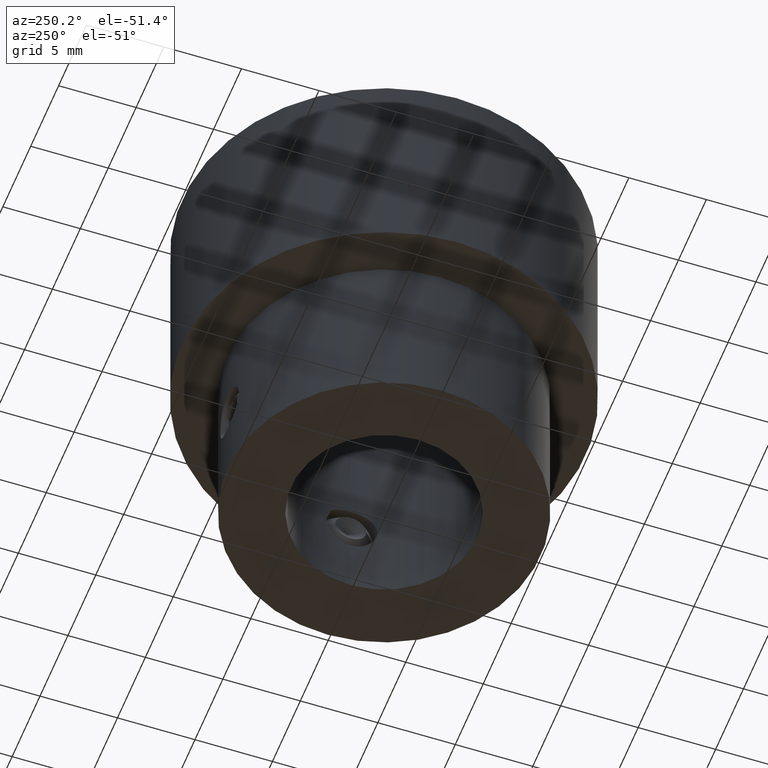
[diagram: clean part render]
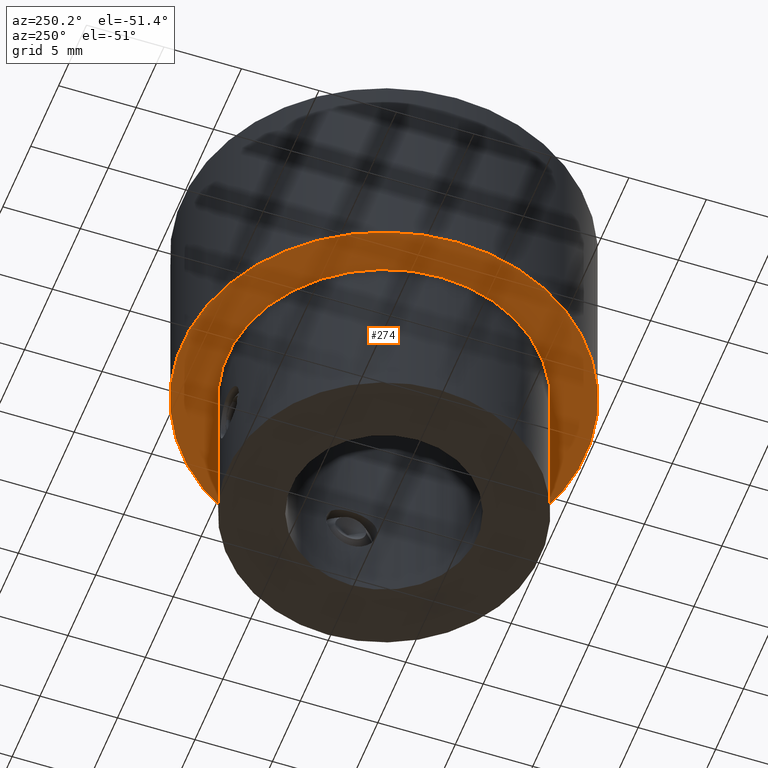
[diagram: same view with one face highlighted and labeled with its STEP entity id]
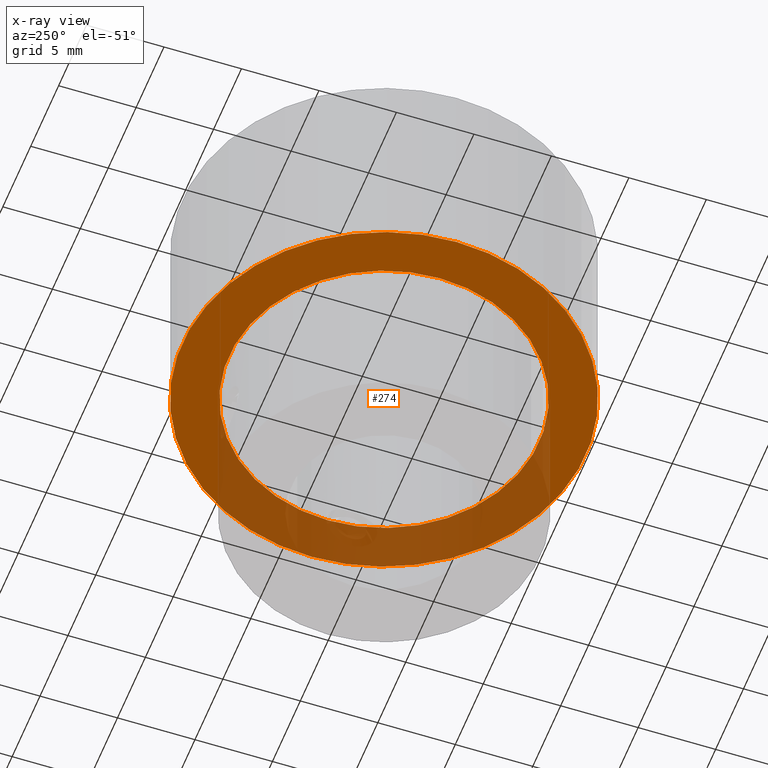
[diagram: x-ray of the same camera — body ghosted, the highlighted face saturated]
A machine part, auxiliary view. The second image highlights one B-rep face of the part: STEP entity #274.
The next image is the same camera in x-ray: the body ghosted, the highlighted face saturated — about 35% of this face is hidden behind the body in this view.
In plain terms, the highlighted planar face has unit normal (0, 0, 1).
Its self-contained STEP definition (entity closure, byte-faithful):
#274 = ADVANCED_FACE( '', ( #341, #342 ), #343, .F. );
#341 = FACE_OUTER_BOUND( '', #433, .T. );
#342 = FACE_BOUND( '', #434, .T. );
#343 = PLANE( '', #435 );
#433 = EDGE_LOOP( '', ( #547 ) );
#434 = EDGE_LOOP( '', ( #548 ) );
#435 = AXIS2_PLACEMENT_3D( '', #549, #550, #551 );
#547 = ORIENTED_EDGE( '', *, *, #714, .F. );
#548 = ORIENTED_EDGE( '', *, *, #716, .T. );
#549 = CARTESIAN_POINT( '', ( 0.000000000000000, 0.000000000000000, -14.0000000000000 ) );
#550 = DIRECTION( '', ( 0.000000000000000, 0.000000000000000, 1.00000000000000 ) );
#551 = DIRECTION( '', ( 1.00000000000000, 0.000000000000000, 0.000000000000000 ) );
#714 = EDGE_CURVE( '', #782, #782, #783, .T. );
#716 = EDGE_CURVE( '', #786, #786, #787, .T. );
#782 = VERTEX_POINT( '', #1086 );
#783 = CIRCLE( '', #1087, 13.0000000000000 );
#786 = VERTEX_POINT( '', #1090 );
#787 = CIRCLE( '', #1091, 10.0000000000000 );
#1086 = CARTESIAN_POINT( '', ( 13.0000000000000, 0.000000000000000, -14.0000000000000 ) );
#1087 = AXIS2_PLACEMENT_3D( '', #1268, #1269, #1270 );
#1090 = CARTESIAN_POINT( '', ( 10.0000000000000, 0.000000000000000, -14.0000000000000 ) );
#1091 = AXIS2_PLACEMENT_3D( '', #1274, #1275, #1276 );
#1268 = CARTESIAN_POINT( '', ( 0.000000000000000, 0.000000000000000, -14.0000000000000 ) );
#1269 = DIRECTION( '', ( 0.000000000000000, 0.000000000000000, 1.00000000000000 ) );
#1270 = DIRECTION( '', ( 1.00000000000000, 0.000000000000000, 0.000000000000000 ) );
#1274 = CARTESIAN_POINT( '', ( 0.000000000000000, 0.000000000000000, -14.0000000000000 ) );
#1275 = DIRECTION( '', ( 0.000000000000000, 0.000000000000000, 1.00000000000000 ) );
#1276 = DIRECTION( '', ( 1.00000000000000, 0.000000000000000, 0.000000000000000 ) );